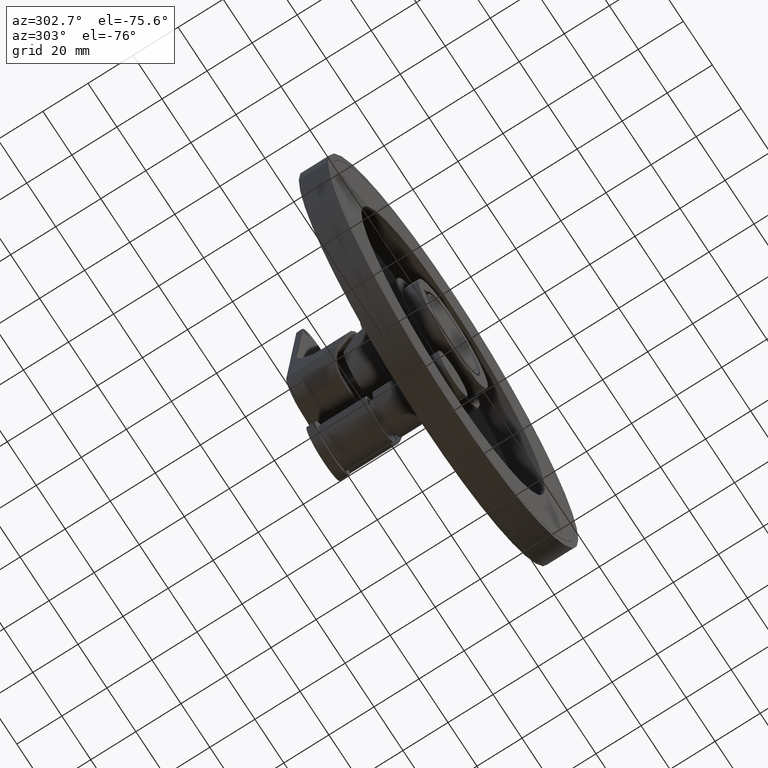
[diagram: clean part render]
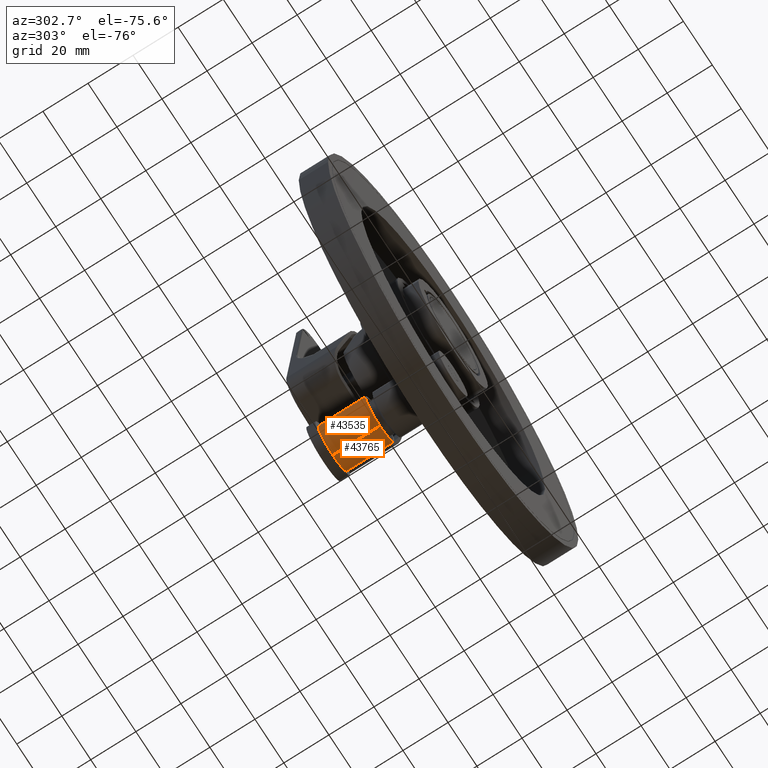
[diagram: same view with one multi-face feature highlighted, each face labeled with its STEP entity id]
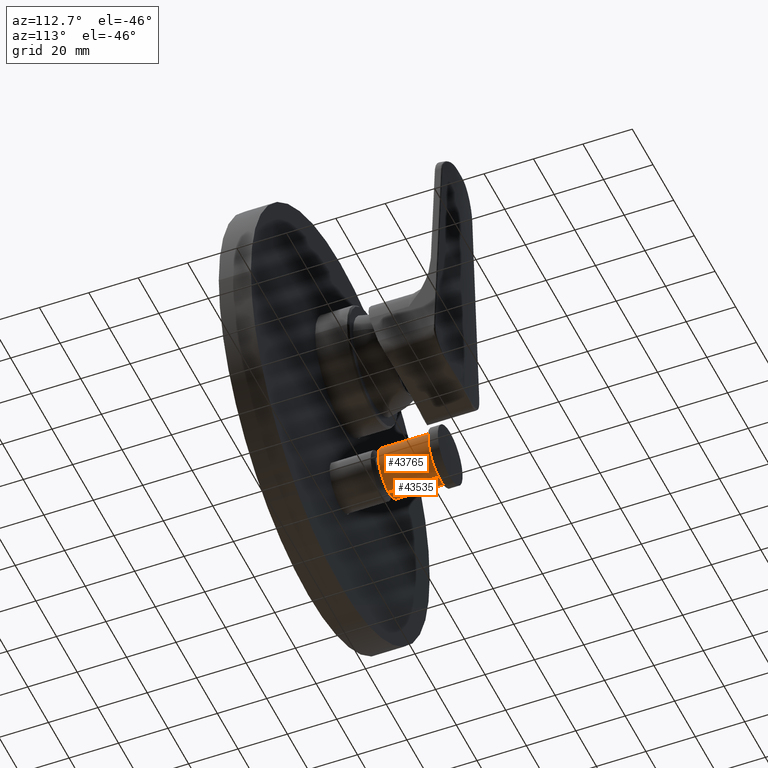
[diagram: same view with one multi-face feature highlighted, each face labeled with its STEP entity id]
A machine part, auxiliary view. The highlighted faces form ONE feature: a constant-radius fillet chain: 2 tangent blend faces with common blend radius 10 mm. The faces share edges in the B-rep.
A second angle (auxiliary view) of the same feature is appended — it is thin or edge-on in the first view.
Their STEP definitions:
[1] entity #43535 (Cylinder):
#42856=CARTESIAN_POINT('',(-1.989974890350E0,1.043532562251E2,
-2.470000000328E1));
#42857=CARTESIAN_POINT('',(-2.020451906975E0,1.043130096036E2,
-2.470618862550E1));
#42858=CARTESIAN_POINT('',(-2.077672795840E0,1.042315253450E2,
-2.471810201156E1));
#42859=CARTESIAN_POINT('',(-2.152915532670E0,1.041062590831E2,
-2.473441486882E1));
#42860=CARTESIAN_POINT('',(-2.217311640240E0,1.039792339821E2,
-2.474885922094E1));
#42861=CARTESIAN_POINT('',(-2.271227486283E0,1.038508007960E2,
-2.476129598148E1));
#42862=CARTESIAN_POINT('',(-2.314907871383E0,1.037213170221E2,
-2.477160235717E1));
#42863=CARTESIAN_POINT('',(-2.348530823335E0,1.035913797071E2,
-2.477967653208E1));
#42864=CARTESIAN_POINT('',(-2.372409256138E0,1.034607845328E2,
-2.478548525608E1));
#42865=CARTESIAN_POINT('',(-2.386600221256E0,1.033303455724E2,
-2.478896682309E1));
#42866=CARTESIAN_POINT('',(-2.389740437295E0,1.032434370925E2,
-2.478974044412E1));
#42867=CARTESIAN_POINT('',(-2.389740437289E0,1.031999999997E2,
-2.478974044412E1));
#42869=CARTESIAN_POINT('',(-2.389740437289E0,1.031999999997E2,
-2.478974044412E1));
#42870=CARTESIAN_POINT('',(-2.389740437282E0,1.031565540969E2,
-2.478974044412E1));
#42871=CARTESIAN_POINT('',(-2.386598761191E0,1.030696328741E2,
-2.478896646419E1));
#42872=CARTESIAN_POINT('',(-2.372406662952E0,1.029391978515E2,
-2.478548462036E1));
#42873=CARTESIAN_POINT('',(-2.348526923324E0,1.028086044107E2,
-2.477967559448E1));
#42874=CARTESIAN_POINT('',(-2.314909206091E0,1.026786877542E2,
-2.477160267308E1));
#42875=CARTESIAN_POINT('',(-2.271225891148E0,1.025491954566E2,
-2.476129561830E1));
#42876=CARTESIAN_POINT('',(-2.217318009783E0,1.024207797293E2,
-2.474886066623E1));
#42877=CARTESIAN_POINT('',(-2.152912110769E0,1.022937339974E2,
-2.473441409969E1));
#42878=CARTESIAN_POINT('',(-2.077671521089E0,1.021684730953E2,
-2.471810175008E1));
#42879=CARTESIAN_POINT('',(-2.020451083399E0,1.020869893088E2,
-2.470618845827E1));
#42880=CARTESIAN_POINT('',(-1.989974890350E0,1.020467437749E2,
-2.470000000328E1));
#42882=CARTESIAN_POINT('',(0.E0,1.007E2,-2.45E1));
#42883=CARTESIAN_POINT('',(-5.128980136321E-2,1.007E2,-2.45E1));
#42884=CARTESIAN_POINT('',(-1.538012760284E-1,1.007039308491E2,
-2.450078704341E1));
#42885=CARTESIAN_POINT('',(-3.078683959910E-1,1.007217882008E2,
-2.450434683145E1));
#42886=CARTESIAN_POINT('',(-4.605769952740E-1,1.007515396085E2,
-2.451022542761E1));
#42887=CARTESIAN_POINT('',(-6.122097638502E-1,1.007933420976E2,
-2.451837500100E1));
#42888=CARTESIAN_POINT('',(-7.623335521257E-1,1.008474344341E2,
-2.452872782573E1));
#42889=CARTESIAN_POINT('',(-9.096359760189E-1,1.009136155986E2,
-2.454109782897E1));
#42890=CARTESIAN_POINT('',(-1.054349502388E0,1.009923765713E2,
-2.455539134701E1));
#42891=CARTESIAN_POINT('',(-1.195178508483E0,1.010835598791E2,
-2.457135292970E1));
#42892=CARTESIAN_POINT('',(-1.331168722228E0,1.011869839809E2,
-2.458869152072E1));
#42893=CARTESIAN_POINT('',(-1.461773868294E0,1.013028378535E2,-2.460713712E1));
#42894=CARTESIAN_POINT('',(-1.585390250185E0,1.014302757090E2,
-2.462622404275E1));
#42895=CARTESIAN_POINT('',(-1.701353460226E0,1.015691463209E2,
-2.464557563839E1));
#42896=CARTESIAN_POINT('',(-1.808462442510E0,1.017186517910E2,
-2.466470313695E1));
#42897=CARTESIAN_POINT('',(-1.905583115470E0,1.018777314986E2,
-2.468309321474E1));
#42898=CARTESIAN_POINT('',(-1.963061322386E0,1.019894044784E2,
-2.469453497017E1));
#42899=CARTESIAN_POINT('',(-1.989974890350E0,1.020467437749E2,
-2.470000000328E1));
#42901=CARTESIAN_POINT('',(0.E0,8.6E1,-3.45E1));
#42902=DIRECTION('',(0.E0,-1.E0,0.E0));
#42903=DIRECTION('',(0.E0,0.E0,1.E0));
#42904=AXIS2_PLACEMENT_3D('',#42901,#42902,#42903);
#42906=CARTESIAN_POINT('',(-1.989974890350E0,1.043532562251E2,
-2.470000000328E1));
#42907=CARTESIAN_POINT('',(-1.963061355259E0,1.044105954515E2,
-2.469453497684E1));
#42908=CARTESIAN_POINT('',(-1.905583321919E0,1.045222681840E2,
-2.468309325282E1));
#42909=CARTESIAN_POINT('',(-1.808462049338E0,1.046813487502E2,
-2.466470306710E1));
#42910=CARTESIAN_POINT('',(-1.701354995746E0,1.048308515758E2,
-2.464557591081E1));
#42911=CARTESIAN_POINT('',(-1.585392481467E0,1.049697218465E2,
-2.462622439950E1));
#42912=CARTESIAN_POINT('',(-1.461775470175E0,1.050971606203E2,
-2.460713735587E1));
#42913=CARTESIAN_POINT('',(-1.331172015926E0,1.052130131482E2,
-2.458869198228E1));
#42914=CARTESIAN_POINT('',(-1.195185388252E0,1.053164353193E2,
-2.457135375435E1));
#42915=CARTESIAN_POINT('',(-1.054353321077E0,1.054076211586E2,
-2.455539175297E1));
#42916=CARTESIAN_POINT('',(-9.096441651466E-1,1.054863802235E2,
-2.454109859573E1));
#42917=CARTESIAN_POINT('',(-7.623412309713E-1,1.055525625844E2,
-2.452872839308E1));
#42918=CARTESIAN_POINT('',(-6.122140887046E-1,1.056066565221E2,
-2.451837526794E1));
#42919=CARTESIAN_POINT('',(-4.605836674956E-1,1.056484588367E2,
-2.451022573302E1));
#42920=CARTESIAN_POINT('',(-3.078707493881E-1,1.056782115544E2,
-2.450434688072E1));
#42921=CARTESIAN_POINT('',(-1.538014495263E-1,1.056960691605E2,
-2.450078704138E1));
#42922=CARTESIAN_POINT('',(-5.128965393813E-2,1.057E2,-2.45E1));
#42923=CARTESIAN_POINT('',(0.E0,1.057E2,-2.45E1));
#43043=DIRECTION('',(0.E0,1.E0,0.E0));
#43044=VECTOR('',#43043,1.3E0);
#43045=CARTESIAN_POINT('',(0.E0,1.057E2,-2.45E1));
#43046=LINE('',#43045,#43044);
#43047=DIRECTION('',(0.E0,1.E0,0.E0));
#43048=VECTOR('',#43047,2.1E1);
#43049=CARTESIAN_POINT('',(0.E0,8.6E1,-4.45E1));
#43050=LINE('',#43049,#43048);
#43056=DIRECTION('',(0.E0,1.E0,0.E0));
#43057=VECTOR('',#43056,1.47E1);
#43058=CARTESIAN_POINT('',(0.E0,8.6E1,-2.45E1));
#43059=LINE('',#43058,#43057);
#43102=CARTESIAN_POINT('',(0.E0,1.07E2,-3.45E1));
#43103=DIRECTION('',(0.E0,-1.E0,0.E0));
#43104=DIRECTION('',(0.E0,0.E0,1.E0));
#43105=AXIS2_PLACEMENT_3D('',#43102,#43103,#43104);
#43426=CARTESIAN_POINT('',(0.E0,8.6E1,-4.45E1));
#43427=CARTESIAN_POINT('',(0.E0,1.07E2,-4.45E1));
#43428=VERTEX_POINT('',#43426);
#43429=VERTEX_POINT('',#43427);
#43438=CARTESIAN_POINT('',(0.E0,8.6E1,-2.45E1));
#43439=VERTEX_POINT('',#43438);
#43440=CARTESIAN_POINT('',(0.E0,1.07E2,-2.45E1));
#43441=VERTEX_POINT('',#43440);
#43442=CARTESIAN_POINT('',(0.E0,1.007E2,-2.45E1));
#43443=VERTEX_POINT('',#43442);
#43444=CARTESIAN_POINT('',(0.E0,1.057E2,-2.45E1));
#43445=VERTEX_POINT('',#43444);
#43478=VERTEX_POINT('',#42856);
#43479=VERTEX_POINT('',#42867);
#43480=VERTEX_POINT('',#42880);
#43511=CARTESIAN_POINT('',(0.E0,1.124699338181E2,-3.45E1));
#43512=DIRECTION('',(0.E0,-1.E0,0.E0));
#43513=DIRECTION('',(0.E0,0.E0,-1.E0));
#43514=AXIS2_PLACEMENT_3D('',#43511,#43512,#43513);
#43515=CYLINDRICAL_SURFACE('',#43514,1.E1);
#43516=ORIENTED_EDGE('',*,*,#43489,.T.);
#43518=ORIENTED_EDGE('',*,*,#43517,.T.);
#43520=ORIENTED_EDGE('',*,*,#43519,.F.);
#43522=ORIENTED_EDGE('',*,*,#43521,.F.);
#43524=ORIENTED_EDGE('',*,*,#43523,.T.);
#43526=ORIENTED_EDGE('',*,*,#43525,.T.);
#43528=ORIENTED_EDGE('',*,*,#43527,.F.);
#43530=ORIENTED_EDGE('',*,*,#43529,.F.);
#43532=ORIENTED_EDGE('',*,*,#43531,.F.);
#43533=EDGE_LOOP('',(#43516,#43518,#43520,#43522,#43524,#43526,#43528,#43530,
#43532));
#43534=FACE_OUTER_BOUND('',#43533,.F.);
#43535=ADVANCED_FACE('',(#43534),#43515,.T.);
#42868=B_SPLINE_CURVE_WITH_KNOTS('',3,(#42856,#42857,#42858,#42859,#42860,
#42861,#42862,#42863,#42864,#42865,#42866,#42867),.UNSPECIFIED.,.F.,.F.,(4,1,1,
1,1,1,1,1,1,4),(0.E0,1.111111111111E-1,2.222222222222E-1,3.333333333333E-1,
4.444444444444E-1,5.555555555556E-1,6.666666666667E-1,7.777777777778E-1,
8.888888888889E-1,1.E0),.UNSPECIFIED.);
#42881=B_SPLINE_CURVE_WITH_KNOTS('',3,(#42869,#42870,#42871,#42872,#42873,
#42874,#42875,#42876,#42877,#42878,#42879,#42880),.UNSPECIFIED.,.F.,.F.,(4,1,1,
1,1,1,1,1,1,4),(0.E0,1.111111111111E-1,2.222222222222E-1,3.333333333333E-1,
4.444444444444E-1,5.555555555556E-1,6.666666666667E-1,7.777777777778E-1,
8.888888888889E-1,1.E0),.UNSPECIFIED.);
#42900=B_SPLINE_CURVE_WITH_KNOTS('',3,(#42882,#42883,#42884,#42885,#42886,
#42887,#42888,#42889,#42890,#42891,#42892,#42893,#42894,#42895,#42896,#42897,
#42898,#42899),.UNSPECIFIED.,.F.,.F.,(4,1,1,1,1,1,1,1,1,1,1,1,1,1,1,4),(0.E0,
6.666666666667E-2,1.333333333333E-1,2.E-1,2.666666666667E-1,3.333333333333E-1,
4.E-1,4.666666666667E-1,5.333333333333E-1,6.E-1,6.666666666667E-1,
7.333333333333E-1,8.E-1,8.666666666667E-1,9.333333333333E-1,1.E0),
.UNSPECIFIED.);
#42905=CIRCLE('',#42904,1.E1);
#42924=B_SPLINE_CURVE_WITH_KNOTS('',3,(#42906,#42907,#42908,#42909,#42910,
#42911,#42912,#42913,#42914,#42915,#42916,#42917,#42918,#42919,#42920,#42921,
#42922,#42923),.UNSPECIFIED.,.F.,.F.,(4,1,1,1,1,1,1,1,1,1,1,1,1,1,1,4),(0.E0,
6.666666666667E-2,1.333333333333E-1,2.E-1,2.666666666667E-1,3.333333333333E-1,
4.E-1,4.666666666667E-1,5.333333333333E-1,6.E-1,6.666666666667E-1,
7.333333333333E-1,8.E-1,8.666666666667E-1,9.333333333333E-1,1.E0),
.UNSPECIFIED.);
#43106=CIRCLE('',#43105,1.E1);
#43489=EDGE_CURVE('',#43478,#43479,#42868,.T.);
#43517=EDGE_CURVE('',#43479,#43480,#42881,.T.);
#43519=EDGE_CURVE('',#43443,#43480,#42900,.T.);
#43521=EDGE_CURVE('',#43439,#43443,#43059,.T.);
#43523=EDGE_CURVE('',#43439,#43428,#42905,.T.);
#43525=EDGE_CURVE('',#43428,#43429,#43050,.T.);
#43527=EDGE_CURVE('',#43441,#43429,#43106,.T.);
#43529=EDGE_CURVE('',#43445,#43441,#43046,.T.);
#43531=EDGE_CURVE('',#43478,#43445,#42924,.T.);
[2] entity #43765 (Cylinder):
#43011=CARTESIAN_POINT('',(2.389740437289E0,1.032000000003E2,
-2.478974044412E1));
#43012=CARTESIAN_POINT('',(2.389740437282E0,1.032434310404E2,
-2.478974044412E1));
#43013=CARTESIAN_POINT('',(2.386601263928E0,1.033303336321E2,
-2.478896708022E1));
#43014=CARTESIAN_POINT('',(2.372408630489E0,1.034607936864E2,
-2.478548509872E1));
#43015=CARTESIAN_POINT('',(2.348524843029E0,1.035914060605E2,
-2.477967508870E1));
#43016=CARTESIAN_POINT('',(2.314904717052E0,1.037213279388E2,
-2.477160160005E1));
#43017=CARTESIAN_POINT('',(2.271216858736E0,1.038508288613E2,
-2.476129350444E1));
#43018=CARTESIAN_POINT('',(2.217307152277E0,1.039792433347E2,
-2.474885819908E1));
#43019=CARTESIAN_POINT('',(2.152904024600E0,1.041062801611E2,
-2.473441232531E1));
#43020=CARTESIAN_POINT('',(2.077666709035E0,1.042315339621E2,
-2.471810073879E1));
#43021=CARTESIAN_POINT('',(2.020449353207E0,1.043130129760E2,
-2.470618810694E1));
#43022=CARTESIAN_POINT('',(1.989974890350E0,1.043532562251E2,
-2.470000000328E1));
#43024=CARTESIAN_POINT('',(0.E0,1.057E2,-2.45E1));
#43025=CARTESIAN_POINT('',(5.128986561561E-2,1.057E2,-2.45E1));
#43026=CARTESIAN_POINT('',(1.538015692329E-1,1.056960691370E2,
-2.450078704618E1));
#43027=CARTESIAN_POINT('',(3.078692539468E-1,1.056782116954E2,
-2.450434685224E1));
#43028=CARTESIAN_POINT('',(4.605788777046E-1,1.056484599502E2,
-2.451022551429E1));
#43029=CARTESIAN_POINT('',(6.122108695753E-1,1.056066575397E2,
-2.451837507103E1));
#43030=CARTESIAN_POINT('',(7.623350540362E-1,1.055525649772E2,
-2.452872793760E1));
#43031=CARTESIAN_POINT('',(9.096374838115E-1,1.054863836319E2,
-2.454109797018E1));
#43032=CARTESIAN_POINT('',(1.054350271249E0,1.054076229751E2,
-2.455539142825E1));
#43033=CARTESIAN_POINT('',(1.195179911049E0,1.053164391424E2,
-2.457135309779E1));
#43034=CARTESIAN_POINT('',(1.331169470556E0,1.052130153761E2,
-2.458869162452E1));
#43035=CARTESIAN_POINT('',(1.461774409110E0,1.050971616369E2,
-2.460713719931E1));
#43036=CARTESIAN_POINT('',(1.585390864463E0,1.049697235979E2,
-2.462622414230E1));
#43037=CARTESIAN_POINT('',(1.701353686303E0,1.048308533776E2,
-2.464557567814E1));
#43038=CARTESIAN_POINT('',(1.808462758741E0,1.046813477363E2,
-2.466470319489E1));
#43039=CARTESIAN_POINT('',(1.905583276351E0,1.045222681975E2,
-2.468309324668E1));
#43040=CARTESIAN_POINT('',(1.963061380418E0,1.044105953979E2,
-2.469453498195E1));
#43041=CARTESIAN_POINT('',(1.989974890350E0,1.043532562251E2,
-2.470000000328E1));
#43043=DIRECTION('',(0.E0,1.E0,0.E0));
#43044=VECTOR('',#43043,1.3E0);
#43045=CARTESIAN_POINT('',(0.E0,1.057E2,-2.45E1));
#43046=LINE('',#43045,#43044);
#43047=DIRECTION('',(0.E0,1.E0,0.E0));
#43048=VECTOR('',#43047,2.1E1);
#43049=CARTESIAN_POINT('',(0.E0,8.6E1,-4.45E1));
#43050=LINE('',#43049,#43048);
#43051=CARTESIAN_POINT('',(0.E0,8.6E1,-3.45E1));
#43052=DIRECTION('',(0.E0,1.E0,0.E0));
#43053=DIRECTION('',(0.E0,0.E0,1.E0));
#43054=AXIS2_PLACEMENT_3D('',#43051,#43052,#43053);
#43056=DIRECTION('',(0.E0,1.E0,0.E0));
#43057=VECTOR('',#43056,1.47E1);
#43058=CARTESIAN_POINT('',(0.E0,8.6E1,-2.45E1));
#43059=LINE('',#43058,#43057);
#43060=CARTESIAN_POINT('',(1.989974890350E0,1.020467437749E2,
-2.470000000328E1));
#43061=CARTESIAN_POINT('',(1.963061409835E0,1.019894046648E2,
-2.469453498792E1));
#43062=CARTESIAN_POINT('',(1.905583473587E0,1.018777321024E2,
-2.468309328292E1));
#43063=CARTESIAN_POINT('',(1.808462346997E0,1.017186516949E2,
-2.466470312165E1));
#43064=CARTESIAN_POINT('',(1.701355213966E0,1.015691487154E2,
-2.464557594919E1));
#43065=CARTESIAN_POINT('',(1.585393068030E0,1.014302788150E2,
-2.462622449453E1));
#43066=CARTESIAN_POINT('',(1.461775982336E0,1.013028398624E2,
-2.460713743098E1));
#43067=CARTESIAN_POINT('',(1.331172730690E0,1.011869874659E2,
-2.458869208141E1));
#43068=CARTESIAN_POINT('',(1.195186719453E0,1.010835656093E2,
-2.457135391388E1));
#43069=CARTESIAN_POINT('',(1.054354056395E0,1.009923792758E2,
-2.455539183074E1));
#43070=CARTESIAN_POINT('',(9.096456128939E-1,1.009136205148E2,
-2.454109873124E1));
#43071=CARTESIAN_POINT('',(7.623426527158E-1,1.008474379723E2,
-2.452872849890E1));
#43072=CARTESIAN_POINT('',(6.122151345321E-1,1.007933438211E2,
-2.451837533420E1));
#43073=CARTESIAN_POINT('',(4.605854461823E-1,1.007515415801E2,
-2.451022581488E1));
#43074=CARTESIAN_POINT('',(3.078715490751E-1,1.007217885419E2,-2.45043469E1));
#43075=CARTESIAN_POINT('',(1.538017202161E-1,1.007039308524E2,
-2.450078704393E1));
#43076=CARTESIAN_POINT('',(5.128971189560E-2,1.007E2,-2.45E1));
#43077=CARTESIAN_POINT('',(0.E0,1.007E2,-2.45E1));
#43079=CARTESIAN_POINT('',(1.989974890350E0,1.020467437749E2,
-2.470000000328E1));
#43080=CARTESIAN_POINT('',(2.020450094192E0,1.020869880025E2,
-2.470618825740E1));
#43081=CARTESIAN_POINT('',(2.077667747113E0,1.021684672472E2,
-2.471810095049E1));
#43082=CARTESIAN_POINT('',(2.152907050849E0,1.022937260779E2,
-2.473441300779E1));
#43083=CARTESIAN_POINT('',(2.217300188055E0,1.024207416645E2,
-2.474885661846E1));
#43084=CARTESIAN_POINT('',(2.271218080971E0,1.025491739304E2,
-2.476129378058E1));
#43085=CARTESIAN_POINT('',(2.314902841654E0,1.026786654557E2,
-2.477160115548E1));
#43086=CARTESIAN_POINT('',(2.348528477257E0,1.028086086924E2,
-2.477967596189E1));
#43087=CARTESIAN_POINT('',(2.372410932715E0,1.029392216910E2,
-2.478548566329E1));
#43088=CARTESIAN_POINT('',(2.386602874229E0,1.030696892328E2,
-2.478896747593E1));
#43089=CARTESIAN_POINT('',(2.389740437295E0,1.031565783761E2,
-2.478974044412E1));
#43090=CARTESIAN_POINT('',(2.389740437289E0,1.032000000003E2,
-2.478974044412E1));
#43097=CARTESIAN_POINT('',(0.E0,1.07E2,-3.45E1));
#43098=DIRECTION('',(0.E0,1.E0,0.E0));
#43099=DIRECTION('',(0.E0,0.E0,1.E0));
#43100=AXIS2_PLACEMENT_3D('',#43097,#43098,#43099);
#43426=CARTESIAN_POINT('',(0.E0,8.6E1,-4.45E1));
#43427=CARTESIAN_POINT('',(0.E0,1.07E2,-4.45E1));
#43428=VERTEX_POINT('',#43426);
#43429=VERTEX_POINT('',#43427);
#43438=CARTESIAN_POINT('',(0.E0,8.6E1,-2.45E1));
#43439=VERTEX_POINT('',#43438);
#43440=CARTESIAN_POINT('',(0.E0,1.07E2,-2.45E1));
#43441=VERTEX_POINT('',#43440);
#43442=CARTESIAN_POINT('',(0.E0,1.007E2,-2.45E1));
#43443=VERTEX_POINT('',#43442);
#43444=CARTESIAN_POINT('',(0.E0,1.057E2,-2.45E1));
#43445=VERTEX_POINT('',#43444);
#43481=VERTEX_POINT('',#43011);
#43482=VERTEX_POINT('',#43022);
#43483=VERTEX_POINT('',#43079);
#43745=CARTESIAN_POINT('',(0.E0,1.124699338181E2,-3.45E1));
#43746=DIRECTION('',(0.E0,-1.E0,0.E0));
#43747=DIRECTION('',(0.E0,0.E0,-1.E0));
#43748=AXIS2_PLACEMENT_3D('',#43745,#43746,#43747);
#43749=CYLINDRICAL_SURFACE('',#43748,1.E1);
#43750=ORIENTED_EDGE('',*,*,#43493,.T.);
#43752=ORIENTED_EDGE('',*,*,#43751,.F.);
#43753=ORIENTED_EDGE('',*,*,#43529,.T.);
#43755=ORIENTED_EDGE('',*,*,#43754,.T.);
#43756=ORIENTED_EDGE('',*,*,#43525,.F.);
#43758=ORIENTED_EDGE('',*,*,#43757,.F.);
#43759=ORIENTED_EDGE('',*,*,#43521,.T.);
#43761=ORIENTED_EDGE('',*,*,#43760,.F.);
#43762=ORIENTED_EDGE('',*,*,#43553,.T.);
#43763=EDGE_LOOP('',(#43750,#43752,#43753,#43755,#43756,#43758,#43759,#43761,
#43762));
#43764=FACE_OUTER_BOUND('',#43763,.F.);
#43765=ADVANCED_FACE('',(#43764),#43749,.T.);
#43023=B_SPLINE_CURVE_WITH_KNOTS('',3,(#43011,#43012,#43013,#43014,#43015,
#43016,#43017,#43018,#43019,#43020,#43021,#43022),.UNSPECIFIED.,.F.,.F.,(4,1,1,
1,1,1,1,1,1,4),(0.E0,1.111111111111E-1,2.222222222222E-1,3.333333333333E-1,
4.444444444444E-1,5.555555555556E-1,6.666666666667E-1,7.777777777778E-1,
8.888888888889E-1,1.E0),.UNSPECIFIED.);
#43042=B_SPLINE_CURVE_WITH_KNOTS('',3,(#43024,#43025,#43026,#43027,#43028,
#43029,#43030,#43031,#43032,#43033,#43034,#43035,#43036,#43037,#43038,#43039,
#43040,#43041),.UNSPECIFIED.,.F.,.F.,(4,1,1,1,1,1,1,1,1,1,1,1,1,1,1,4),(0.E0,
6.666666666667E-2,1.333333333333E-1,2.E-1,2.666666666667E-1,3.333333333333E-1,
4.E-1,4.666666666667E-1,5.333333333333E-1,6.E-1,6.666666666667E-1,
7.333333333333E-1,8.E-1,8.666666666667E-1,9.333333333333E-1,1.E0),
.UNSPECIFIED.);
#43055=CIRCLE('',#43054,1.E1);
#43078=B_SPLINE_CURVE_WITH_KNOTS('',3,(#43060,#43061,#43062,#43063,#43064,
#43065,#43066,#43067,#43068,#43069,#43070,#43071,#43072,#43073,#43074,#43075,
#43076,#43077),.UNSPECIFIED.,.F.,.F.,(4,1,1,1,1,1,1,1,1,1,1,1,1,1,1,4),(0.E0,
6.666666666667E-2,1.333333333333E-1,2.E-1,2.666666666667E-1,3.333333333333E-1,
4.E-1,4.666666666667E-1,5.333333333333E-1,6.E-1,6.666666666667E-1,
7.333333333333E-1,8.E-1,8.666666666667E-1,9.333333333333E-1,1.E0),
.UNSPECIFIED.);
#43091=B_SPLINE_CURVE_WITH_KNOTS('',3,(#43079,#43080,#43081,#43082,#43083,
#43084,#43085,#43086,#43087,#43088,#43089,#43090),.UNSPECIFIED.,.F.,.F.,(4,1,1,
1,1,1,1,1,1,4),(0.E0,1.111111111111E-1,2.222222222222E-1,3.333333333333E-1,
4.444444444444E-1,5.555555555556E-1,6.666666666667E-1,7.777777777778E-1,
8.888888888889E-1,1.E0),.UNSPECIFIED.);
#43101=CIRCLE('',#43100,1.E1);
#43493=EDGE_CURVE('',#43481,#43482,#43023,.T.);
#43521=EDGE_CURVE('',#43439,#43443,#43059,.T.);
#43525=EDGE_CURVE('',#43428,#43429,#43050,.T.);
#43529=EDGE_CURVE('',#43445,#43441,#43046,.T.);
#43553=EDGE_CURVE('',#43483,#43481,#43091,.T.);
#43751=EDGE_CURVE('',#43445,#43482,#43042,.T.);
#43754=EDGE_CURVE('',#43441,#43429,#43101,.T.);
#43757=EDGE_CURVE('',#43439,#43428,#43055,.T.);
#43760=EDGE_CURVE('',#43483,#43443,#43078,.T.);